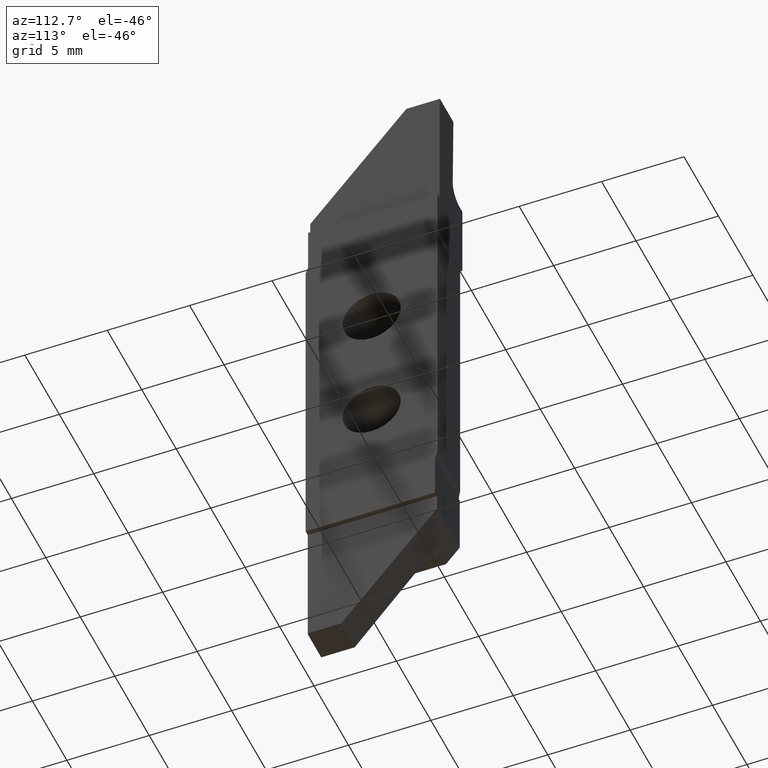
[diagram: clean part render]
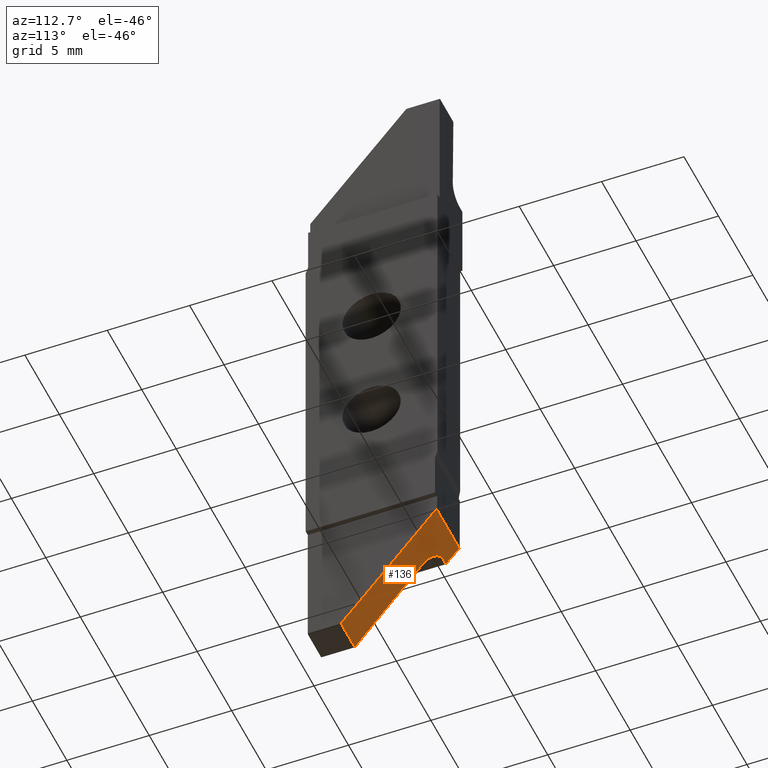
[diagram: same view with one face highlighted and labeled with its STEP entity id]
A machine part, auxiliary view. The second image highlights one B-rep face of the part: STEP entity #136.
In plain terms, the highlighted planar face has unit normal (0, 0.766, -0.6428).
Its self-contained STEP definition (entity closure, byte-faithful):
#29 = VERTEX_POINT ( 'NONE', #1339 ) ;
#40 = EDGE_CURVE ( 'NONE', #60, #372, #993, .T. ) ;
#41 = ORIENTED_EDGE ( 'NONE', *, *, #1241, .F. ) ;
#58 = EDGE_CURVE ( 'NONE', #372, #559, #266, .T. ) ;
#60 = VERTEX_POINT ( 'NONE', #547 ) ;
#71 = VERTEX_POINT ( 'NONE', #614 ) ;
#81 = VERTEX_POINT ( 'NONE', #661 ) ;
#88 = EDGE_CURVE ( 'NONE', #81, #29, #261, .T. ) ;
#136 = ADVANCED_FACE ( 'NONE', ( #443 ), #527, .T. ) ;
#138 = DIRECTION ( 'NONE',  ( 1.000000000000000000, 2.409338161078898700E-016, 2.871337409240115200E-016 ) ) ;
#202 = VERTEX_POINT ( 'NONE', #838 ) ;
#257 = CARTESIAN_POINT ( 'NONE',  ( -3.400156099504054500E-015, 3.812906666467840400, -13.03857768193436200 ) ) ;
#258 = CARTESIAN_POINT ( 'NONE',  ( -1.260029733574124600E-014, 3.006177553973358800, -14.00000000000000400 ) ) ;
#261 = LINE ( 'NONE', #258, #264 ) ;
#264 = VECTOR ( 'NONE', #1086, 1000.000000000000000 ) ;
#266 = LINE ( 'NONE', #1179, #810 ) ;
#272 = LINE ( 'NONE', #257, #709 ) ;
#295 = VERTEX_POINT ( 'NONE', #818 ) ;
#298 = LINE ( 'NONE', #1351, #1079 ) ;
#329 = CARTESIAN_POINT ( 'NONE',  ( 1.301420775825264100, -1.960120717971741700, -19.91860380748501700 ) ) ;
#336 = CARTESIAN_POINT ( 'NONE',  ( 1.301273448769029000, -1.967203022108543900, -19.92704416888389200 ) ) ;
#337 = ORIENTED_EDGE ( 'NONE', *, *, #40, .T. ) ;
#367 = ORIENTED_EDGE ( 'NONE', *, *, #1089, .T. ) ;
#371 = CARTESIAN_POINT ( 'NONE',  ( 3.300000000000005200, -2.018000000000004200, -19.98758164977897100 ) ) ;
#372 = VERTEX_POINT ( 'NONE', #474 ) ;
#389 = CARTESIAN_POINT ( 'NONE',  ( 1.304929751490393000, -1.980988543171248800, -19.94347311313615700 ) ) ;
#399 = CARTESIAN_POINT ( 'NONE',  ( 0.0000000000000000000, 3.812906666467839500, -13.03857768193436200 ) ) ;
#439 = CARTESIAN_POINT ( 'NONE',  ( 1.304929751490393000, -1.980988543171248800, -19.94347311313615700 ) ) ;
#443 = FACE_OUTER_BOUND ( 'NONE', #811, .T. ) ;
#461 = CARTESIAN_POINT ( 'NONE',  ( 1.302452854771702000, -1.974216931765317800, -19.93540302091548700 ) ) ;
#474 = CARTESIAN_POINT ( 'NONE',  ( 3.296478839947386800, -1.980988543171248800, -19.94347311313615700 ) ) ;
#493 = ORIENTED_EDGE ( 'NONE', *, *, #58, .T. ) ;
#527 = PLANE ( 'NONE',  #861 ) ;
#547 = CARTESIAN_POINT ( 'NONE',  ( 3.300000000000005200, -1.961292262596118000, -19.92000000000000200 ) ) ;
#559 = VERTEX_POINT ( 'NONE', #439 ) ;
#572 = DIRECTION ( 'NONE',  ( 0.0000000000000000000, 0.6427876096865379200, 0.7660444431189792300 ) ) ;
#577 = CARTESIAN_POINT ( 'NONE',  ( 3.296478839947386800, -1.980988543171248800, -19.94347311313615700 ) ) ;
#586 = VECTOR ( 'NONE', #1191, 1000.000000000000200 ) ;
#614 = CARTESIAN_POINT ( 'NONE',  ( 3.300000000000005200, 3.812906666467839500, -13.03857768193436200 ) ) ;
#617 = VERTEX_POINT ( 'NONE', #399 ) ;
#651 = DIRECTION ( 'NONE',  ( 0.0000000000000000000, 0.7660444431189792300, -0.6427876096865380300 ) ) ;
#661 = CARTESIAN_POINT ( 'NONE',  ( 5.315678523186871700E-015, 3.006177553973358000, -14.00000000000000400 ) ) ;
#675 = DIRECTION ( 'NONE',  ( -1.000000000000000000, -0.0000000000000000000, -0.0000000000000000000 ) ) ;
#709 = VECTOR ( 'NONE', #138, 1000.000000000000000 ) ;
#712 = CARTESIAN_POINT ( 'NONE',  ( 3.298817557624935700, -1.974594700755038200, -19.93585322846615400 ) ) ;
#774 = ORIENTED_EDGE ( 'NONE', *, *, #1067, .F. ) ;
#796 = ORIENTED_EDGE ( 'NONE', *, *, #1001, .T. ) ;
#798 = CARTESIAN_POINT ( 'NONE',  ( 0.0000000000000000000, -2.018000000000004200, -19.98758164977897100 ) ) ;
#802 =( BOUNDED_CURVE ( )  B_SPLINE_CURVE ( 3, ( #389, #461, #336, #329 ),
 .UNSPECIFIED., .F., .T. ) 
 B_SPLINE_CURVE_WITH_KNOTS ( ( 4, 4 ),
 ( 4.414592995845671600, 4.729842272904653200 ),
 .UNSPECIFIED. ) 
 CURVE ( )  GEOMETRIC_REPRESENTATION_ITEM ( )  RATIONAL_B_SPLINE_CURVE ( ( 1.000000000000000000, 0.9917352908090397700, 0.9917352908090397700, 1.000000000000000000 ) ) 
 REPRESENTATION_ITEM ( '' )  );
#810 = VECTOR ( 'NONE', #675, 1000.000000000000000 ) ;
#811 = EDGE_LOOP ( 'NONE', ( #774, #337, #493, #1331, #41, #1309, #1427, #796, #367 ) ) ;
#818 = CARTESIAN_POINT ( 'NONE',  ( 1.386970691753576900, 2.152433614991401200, -15.01745240643729000 ) ) ;
#838 = CARTESIAN_POINT ( 'NONE',  ( 1.301420775825264100, -1.960120717971741700, -19.91860380748501700 ) ) ;
#861 = AXIS2_PLACEMENT_3D ( 'NONE', #798, #651, #1346 ) ;
#909 =( BOUNDED_CURVE ( )  B_SPLINE_CURVE ( 3, ( #1186, #1252, #1042, #1128 ),
 .UNSPECIFIED., .F., .F. ) 
 B_SPLINE_CURVE_WITH_KNOTS ( ( 4, 4 ),
 ( 1.553343034274952400, 3.141592653589794400 ),
 .UNSPECIFIED. ) 
 CURVE ( )  GEOMETRIC_REPRESENTATION_ITEM ( )  RATIONAL_B_SPLINE_CURVE ( ( 1.000000000000000000, 0.8006061761999001500, 0.8006061761999001500, 1.000000000000000000 ) ) 
 REPRESENTATION_ITEM ( '' )  );
#993 =( BOUNDED_CURVE ( )  B_SPLINE_CURVE ( 3, ( #1178, #1312, #712, #577 ),
 .UNSPECIFIED., .F., .F. ) 
 B_SPLINE_CURVE_WITH_KNOTS ( ( 4, 4 ),
 ( 1.570796326794896600, 1.868592311333917100 ),
 .UNSPECIFIED. ) 
 CURVE ( )  GEOMETRIC_REPRESENTATION_ITEM ( )  RATIONAL_B_SPLINE_CURVE ( ( 1.000000000000000000, 0.9926234396585247300, 0.9926234396585247300, 1.000000000000000000 ) ) 
 REPRESENTATION_ITEM ( '' )  );
#1001 = EDGE_CURVE ( 'NONE', #81, #617, #298, .T. ) ;
#1021 = EDGE_CURVE ( 'NONE', #295, #29, #909, .T. ) ;
#1042 = CARTESIAN_POINT ( 'NONE',  ( 0.9810483416314896800, 3.006177553973360600, -13.99999999999999800 ) ) ;
#1064 = LINE ( 'NONE', #371, #1318 ) ;
#1067 = EDGE_CURVE ( 'NONE', #60, #71, #1064, .T. ) ;
#1079 = VECTOR ( 'NONE', #1401, 1000.000000000000000 ) ;
#1082 = EDGE_CURVE ( 'NONE', #559, #202, #802, .T. ) ;
#1086 = DIRECTION ( 'NONE',  ( 1.000000000000000000, 1.036217226946301100E-015, 1.234915602921268400E-015 ) ) ;
#1089 = EDGE_CURVE ( 'NONE', #617, #71, #272, .T. ) ;
#1128 = CARTESIAN_POINT ( 'NONE',  ( 0.3871229965971845200, 3.006177553973359300, -14.00000000000000400 ) ) ;
#1178 = CARTESIAN_POINT ( 'NONE',  ( 3.300000000000005200, -1.961292262596118000, -19.92000000000000200 ) ) ;
#1179 = CARTESIAN_POINT ( 'NONE',  ( 0.0000000000000000000, -1.980988543171248800, -19.94347311313615700 ) ) ;
#1186 = CARTESIAN_POINT ( 'NONE',  ( 1.386970691753576900, 2.152433614991401200, -15.01745240643729000 ) ) ;
#1191 = DIRECTION ( 'NONE',  ( -0.01337016029944014200, -0.6427301543808625600, -0.7659759705520270400 ) ) ;
#1196 = CARTESIAN_POINT ( 'NONE',  ( 1.299984334818221400, -2.029173289484597300, -20.00089745766333100 ) ) ;
#1241 = EDGE_CURVE ( 'NONE', #295, #202, #1268, .T. ) ;
#1252 = CARTESIAN_POINT ( 'NONE',  ( 1.397336118268520200, 2.650720249928117900, -14.42361751910976900 ) ) ;
#1268 = LINE ( 'NONE', #1196, #586 ) ;
#1309 = ORIENTED_EDGE ( 'NONE', *, *, #1021, .T. ) ;
#1312 = CARTESIAN_POINT ( 'NONE',  ( 3.300000000000005600, -1.967980483725632300, -19.92797071155916200 ) ) ;
#1318 = VECTOR ( 'NONE', #572, 1000.000000000000000 ) ;
#1331 = ORIENTED_EDGE ( 'NONE', *, *, #1082, .T. ) ;
#1339 = CARTESIAN_POINT ( 'NONE',  ( 0.3871229965971845200, 3.006177553973359300, -14.00000000000000400 ) ) ;
#1346 = DIRECTION ( 'NONE',  ( 0.0000000000000000000, 0.6427876096865379200, 0.7660444431189791200 ) ) ;
#1351 = CARTESIAN_POINT ( 'NONE',  ( 0.0000000000000000000, -2.018000000000004200, -19.98758164977897100 ) ) ;
#1401 = DIRECTION ( 'NONE',  ( 0.0000000000000000000, 0.6427876096865379200, 0.7660444431189792300 ) ) ;
#1427 = ORIENTED_EDGE ( 'NONE', *, *, #88, .F. ) ;